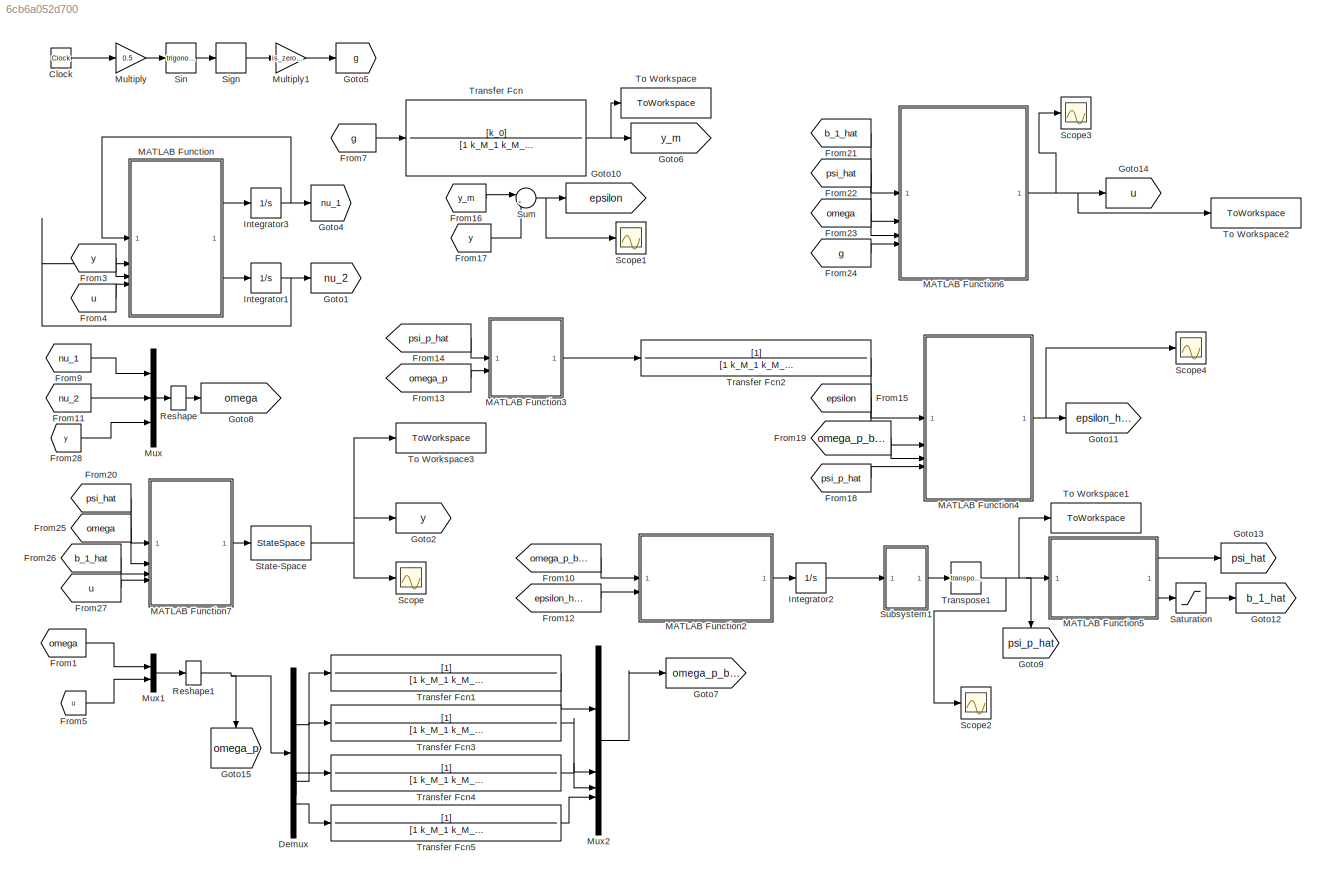
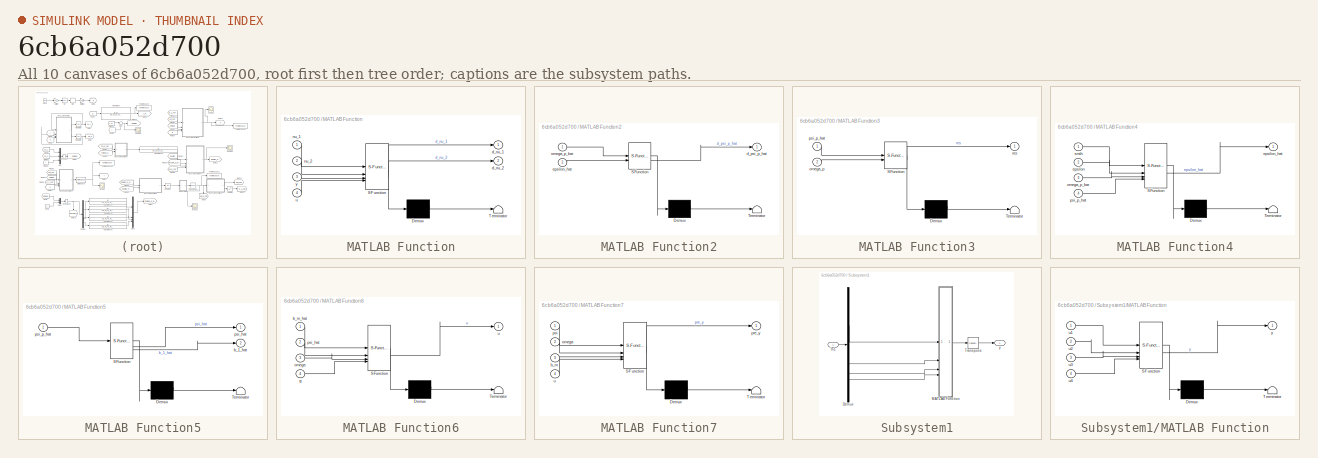
[diagram: thumbnail index - all 10 canvases of the model, root first then tree order]
MODEL slx_6cb6a052d700
KIND model
CONFIG AbsTol = auto
CONFIG EnableMultiTasking = off
CONFIG FixedStep = auto
CONFIG MaxStep = auto
CONFIG MinStep = auto
CONFIG RelTol = 1e-3
CONFIG SampleTimeConstraint = Unconstrained
CONFIG SolverName = VariableStepAuto
CONFIG StartTime = 0.0
CONFIG StopTime = 50
BLOCK [Clock] Clock
BLOCK [Demux] Demux
BLOCK [From] From1
  GotoTag = omega
BLOCK [From] From10
  GotoTag = omega_p_bar
BLOCK [From] From11
  GotoTag = nu_2
BLOCK [From] From12
  GotoTag = epsilon_hat
BLOCK [From] From13
  GotoTag = omega_p
BLOCK [From] From14
  GotoTag = psi_p_hat
BLOCK [From] From15
  GotoTag = epsilon
BLOCK [From] From16
  GotoTag = y_m
BLOCK [From] From17
  GotoTag = y
BLOCK [From] From18
  GotoTag = psi_p_hat
BLOCK [From] From19
  GotoTag = omega_p_bar
BLOCK [From] From20
  GotoTag = psi_hat
BLOCK [From] From21
  GotoTag = b_1_hat
BLOCK [From] From22
  GotoTag = psi_hat
BLOCK [From] From23
  GotoTag = omega
BLOCK [From] From24
  GotoTag = g
BLOCK [From] From25
  GotoTag = omega
BLOCK [From] From26
  GotoTag = b_1_hat
BLOCK [From] From27
  GotoTag = u
BLOCK [From] From28
  GotoTag = y
BLOCK [From] From3
  GotoTag = y
BLOCK [From] From4
  GotoTag = u
BLOCK [From] From5
  GotoTag = u
BLOCK [From] From7
  GotoTag = g
BLOCK [From] From9
  GotoTag = nu_1
BLOCK [Goto] Goto1
  GotoTag = nu_2
BLOCK [Goto] Goto10
  GotoTag = epsilon
BLOCK [Goto] Goto11
  GotoTag = epsilon_hat
BLOCK [Goto] Goto12
  GotoTag = b_1_hat
BLOCK [Goto] Goto13
  GotoTag = psi_hat
BLOCK [Goto] Goto14
  GotoTag = u
BLOCK [Goto] Goto15
  GotoTag = omega_p
  NameLocation = left
BLOCK [Goto] Goto2
  GotoTag = y
BLOCK [Goto] Goto4
  GotoTag = nu_1
BLOCK [Goto] Goto5
  GotoTag = g
BLOCK [Goto] Goto6
  GotoTag = y_m
BLOCK [Goto] Goto7
  GotoTag = omega_p_bar
BLOCK [Goto] Goto8
  GotoTag = omega
BLOCK [Goto] Goto9
  GotoTag = psi_p_hat
  NameLocation = left
BLOCK [Integrator] Integrator1
BLOCK [Integrator] Integrator2
  InitialCondition = [10; 10; 10; 10]
BLOCK [Integrator] Integrator3
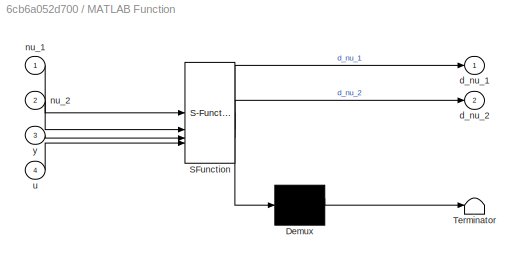
BLOCK [SubSystem] MATLAB Function
  ErrorFcn = Stateflow.Translate.translate
  PermitHierarchicalResolution = ExplicitOnly
  SFBlockType = MATLAB Function
  TreatAsAtomicUnit = on
BLOCK [Demux] MATLAB Function/ Demux 
  Outputs = 1
BLOCK [S-Function] MATLAB Function/ SFunction 
  EnableBusSupport = on
  FunctionName = sf_sfun
  Parameters = Lambda
  PortCounts = [4 3]
  SFcnIsStateOwnerBlock = off
  SFunctionDeploymentMode = off
  Tag = Stateflow S-Function 2
BLOCK [Terminator] MATLAB Function/ Terminator 
BLOCK [Outport] MATLAB Function/d_nu_1
BLOCK [Outport] MATLAB Function/d_nu_2
  Port = 2
BLOCK [Inport] MATLAB Function/nu_1
BLOCK [Inport] MATLAB Function/nu_2
  Port = 2
BLOCK [Inport] MATLAB Function/u
  Port = 4
BLOCK [Inport] MATLAB Function/y
  Port = 3
BLOCK [SubSystem] MATLAB Function2
  ErrorFcn = Stateflow.Translate.translate
  PermitHierarchicalResolution = ExplicitOnly
  SFBlockType = MATLAB Function
  TreatAsAtomicUnit = on
BLOCK [Demux] MATLAB Function2/ Demux 
  Outputs = 1
BLOCK [S-Function] MATLAB Function2/ SFunction 
  EnableBusSupport = on
  FunctionName = sf_sfun
  Parameters = gamma
  PortCounts = [2 2]
  SFcnIsStateOwnerBlock = off
  SFunctionDeploymentMode = off
  Tag = Stateflow S-Function 3
BLOCK [Terminator] MATLAB Function2/ Terminator 
BLOCK [Outport] MATLAB Function2/d_psi_p_hat
BLOCK [Inport] MATLAB Function2/epsilon_hat
  Port = 2
BLOCK [Inport] MATLAB Function2/omega_p_bar
BLOCK [SubSystem] MATLAB Function3
  ErrorFcn = Stateflow.Translate.translate
  PermitHierarchicalResolution = ExplicitOnly
  SFBlockType = MATLAB Function
  TreatAsAtomicUnit = on
BLOCK [Demux] MATLAB Function3/ Demux 
  Outputs = 1
BLOCK [S-Function] MATLAB Function3/ SFunction 
  EnableBusSupport = on
  FunctionName = sf_sfun
  PortCounts = [2 2]
  SFcnIsStateOwnerBlock = off
  SFunctionDeploymentMode = off
  Tag = Stateflow S-Function 4
BLOCK [Terminator] MATLAB Function3/ Terminator 
BLOCK [Inport] MATLAB Function3/omega_p
  Port = 2
BLOCK [Inport] MATLAB Function3/psi_p_hat
BLOCK [Outport] MATLAB Function3/res
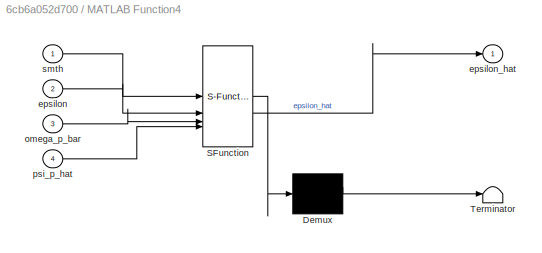
BLOCK [SubSystem] MATLAB Function4
  ErrorFcn = Stateflow.Translate.translate
  PermitHierarchicalResolution = ExplicitOnly
  SFBlockType = MATLAB Function
  TreatAsAtomicUnit = on
BLOCK [Demux] MATLAB Function4/ Demux 
  Outputs = 1
BLOCK [S-Function] MATLAB Function4/ SFunction 
  EnableBusSupport = on
  FunctionName = sf_sfun
  PortCounts = [4 2]
  SFcnIsStateOwnerBlock = off
  SFunctionDeploymentMode = off
  Tag = Stateflow S-Function 5
BLOCK [Terminator] MATLAB Function4/ Terminator 
BLOCK [Inport] MATLAB Function4/epsilon
  Port = 2
BLOCK [Outport] MATLAB Function4/epsilon_hat
BLOCK [Inport] MATLAB Function4/omega_p_bar
  Port = 3
BLOCK [Inport] MATLAB Function4/psi_p_hat
  Port = 4
BLOCK [Inport] MATLAB Function4/smth
BLOCK [SubSystem] MATLAB Function5
  ErrorFcn = Stateflow.Translate.translate
  PermitHierarchicalResolution = ExplicitOnly
  SFBlockType = MATLAB Function
  TreatAsAtomicUnit = on
BLOCK [Demux] MATLAB Function5/ Demux 
  Outputs = 1
BLOCK [S-Function] MATLAB Function5/ SFunction 
  EnableBusSupport = on
  FunctionName = sf_sfun
  PortCounts = [1 3]
  SFcnIsStateOwnerBlock = off
  SFunctionDeploymentMode = off
  Tag = Stateflow S-Function 6
BLOCK [Terminator] MATLAB Function5/ Terminator 
BLOCK [Outport] MATLAB Function5/b_1_hat
  Port = 2
BLOCK [Outport] MATLAB Function5/psi_hat
BLOCK [Inport] MATLAB Function5/psi_p_hat
BLOCK [SubSystem] MATLAB Function6
  ErrorFcn = Stateflow.Translate.translate
  PermitHierarchicalResolution = ExplicitOnly
  SFBlockType = MATLAB Function
  TreatAsAtomicUnit = on
BLOCK [Demux] MATLAB Function6/ Demux 
  Outputs = 1
BLOCK [S-Function] MATLAB Function6/ SFunction 
  EnableBusSupport = on
  FunctionName = sf_sfun
  Parameters = k_0
  PortCounts = [4 2]
  SFcnIsStateOwnerBlock = off
  SFunctionDeploymentMode = off
  Tag = Stateflow S-Function 7
BLOCK [Terminator] MATLAB Function6/ Terminator 
BLOCK [Inport] MATLAB Function6/b_m_hat
BLOCK [Inport] MATLAB Function6/g
  Port = 4
BLOCK [Inport] MATLAB Function6/omega
  Port = 3
BLOCK [Inport] MATLAB Function6/psi_hat
  Port = 2
BLOCK [Outport] MATLAB Function6/u
BLOCK [SubSystem] MATLAB Function7
  ErrorFcn = Stateflow.Translate.translate
  PermitHierarchicalResolution = ExplicitOnly
  SFBlockType = MATLAB Function
  TreatAsAtomicUnit = on
BLOCK [Demux] MATLAB Function7/ Demux 
  Outputs = 1
BLOCK [S-Function] MATLAB Function7/ SFunction 
  EnableBusSupport = on
  FunctionName = sf_sfun
  PortCounts = [4 2]
  SFcnIsStateOwnerBlock = off
  SFunctionDeploymentMode = off
  Tag = Stateflow S-Function 8
BLOCK [Terminator] MATLAB Function7/ Terminator 
BLOCK [Inport] MATLAB Function7/b_m
  Port = 3
BLOCK [Inport] MATLAB Function7/omega
  Port = 2
BLOCK [Outport] MATLAB Function7/pre_y
BLOCK [Inport] MATLAB Function7/psi
BLOCK [Inport] MATLAB Function7/u
  Port = 4
BLOCK [Gain] Multiply
  Gain = 0.5
BLOCK [Gain] Multiply1
  Gain = is_zero - 1
BLOCK [Mux] Mux
  DisplayOption = bar
  Inputs = 3
BLOCK [Mux] Mux1
  DisplayOption = bar
  Inputs = 2
BLOCK [Mux] Mux2
  DisplayOption = bar
BLOCK [Reshape] Reshape
  OutputDimensionality = Customize
  OutputDimensions = [3,1]
BLOCK [Reshape] Reshape1
  OutputDimensionality = Customize
  OutputDimensions = [4,1]
BLOCK [Saturate] Saturation
  LowerLimit = 0.1
  UpperLimit = 1e9
BLOCK [Scope] Scope
  Floating = off
  NumInputPorts = 1
  ScopeSpecificationString = Simulink.scopes.TimeScopeBlockCfg('CurrentConfiguration', extmgr.ConfigurationSet(extmgr.Configuration('Core','General UI',true),extmgr.Configuration('Core','Source UI',true),extmgr.Configuration('Sources','WiredSimulink',true),extmgr.Configuration('Visuals','Time Domain',true,'SerializedDisplays',{struct('MinYLimReal','-0.05','MaxYLimReal','0.45','YLabelReal','','MinYLimMag','0.00000','MaxYLimMag...<+1313ch>
BLOCK [Scope] Scope1
  Floating = off
  NumInputPorts = 1
  ScopeSpecificationString = Simulink.scopes.TimeScopeBlockCfg('CurrentConfiguration', extmgr.ConfigurationSet(extmgr.Configuration('Core','General UI',true),extmgr.Configuration('Core','Source UI',true),extmgr.Configuration('Sources','WiredSimulink',true,'DataLoggingVariableName','ScopeData1'),extmgr.Configuration('Visuals','Time Domain',true,'SerializedDisplays',{struct('MinYLimReal','-0.64312','MaxYLimReal','0.07146','YLab...<+1362ch>
BLOCK [Scope] Scope2
  Floating = off
  NumInputPorts = 1
  ScopeSpecificationString = Simulink.scopes.TimeScopeBlockCfg('CurrentConfiguration', extmgr.ConfigurationSet(extmgr.Configuration('Core','General UI',true),extmgr.Configuration('Core','Source UI',true),extmgr.Configuration('Sources','WiredSimulink',true,'DataLoggingVariableName','ScopeData2'),extmgr.Configuration('Visuals','Time Domain',true,'SerializedDisplays',{struct('MinYLimReal','9.87979','MaxYLimReal','10.13855','YLab...<+1418ch>
BLOCK [Scope] Scope3
  Floating = off
  NumInputPorts = 1
  ScopeSpecificationString = Simulink.scopes.TimeScopeBlockCfg('CurrentConfiguration', extmgr.ConfigurationSet(extmgr.Configuration('Core','General UI',true),extmgr.Configuration('Core','Source UI',true),extmgr.Configuration('Sources','WiredSimulink',true,'DataLoggingVariableName','ScopeData3'),extmgr.Configuration('Visuals','Time Domain',true,'SerializedDisplays',{struct('MinYLimReal','-0.77056','MaxYLimReal','0.29407','YLab...<+1375ch>
BLOCK [Scope] Scope4
  Floating = off
  NumInputPorts = 1
  ScopeSpecificationString = Simulink.scopes.TimeScopeBlockCfg('CurrentConfiguration', extmgr.ConfigurationSet(extmgr.Configuration('Core','General UI',true),extmgr.Configuration('Core','Source UI',true),extmgr.Configuration('Sources','WiredSimulink',true,'DataLoggingVariableName','ScopeData4'),extmgr.Configuration('Visuals','Time Domain',true,'SerializedDisplays',{struct('MinYLimReal','-0.64312','MaxYLimReal','0.07146','YLab...<+1375ch>
BLOCK [Signum] Sign
BLOCK [Trigonometry] Sin
BLOCK [StateSpace] State-Space
  A = ss(tf([1], [1, k_M_1 k_M_0])).A
  B = ss(tf([1], [1, k_M_1 k_M_0])).B
  C = ss(tf([1], [1, k_M_1 k_M_0])).C
  D = ss(tf([1], [1, k_M_1 k_M_0])).D
  InitialCondition = 1
BLOCK [SubSystem] Subsystem1
BLOCK [Demux] Subsystem1/Demux
BLOCK [Inport] Subsystem1/In1
BLOCK [SubSystem] Subsystem1/MATLAB Function
  ErrorFcn = Stateflow.Translate.translate
  PermitHierarchicalResolution = ExplicitOnly
  SFBlockType = MATLAB Function
  TreatAsAtomicUnit = on
BLOCK [Demux] Subsystem1/MATLAB Function/ Demux 
  Outputs = 1
BLOCK [S-Function] Subsystem1/MATLAB Function/ SFunction 
  EnableBusSupport = on
  FunctionName = sf_sfun
  PortCounts = [4 2]
  SFcnIsStateOwnerBlock = off
  SFunctionDeploymentMode = off
  Tag = Stateflow S-Function 10
BLOCK [Terminator] Subsystem1/MATLAB Function/ Terminator 
BLOCK [Inport] Subsystem1/MATLAB Function/u1
BLOCK [Inport] Subsystem1/MATLAB Function/u2
  Port = 2
BLOCK [Inport] Subsystem1/MATLAB Function/u3
  Port = 3
BLOCK [Inport] Subsystem1/MATLAB Function/u4
  Port = 4
BLOCK [Outport] Subsystem1/MATLAB Function/y
BLOCK [Math] Subsystem1/Transpose
  Operator = transpose
BLOCK [Outport] Subsystem1/y
BLOCK [Sum] Sum
  Inputs = |+-
BLOCK [ToWorkspace] To Workspace
  FixptAsFi = on
  MaxDataPoints = inf
  SampleTime = -1
  SaveFormat = Timeseries
  VariableName = y_m
BLOCK [ToWorkspace] To Workspace1
  FixptAsFi = on
  MaxDataPoints = inf
  SampleTime = -1
  SaveFormat = Timeseries
  VariableName = psi_p_hat
BLOCK [ToWorkspace] To Workspace2
  FixptAsFi = on
  MaxDataPoints = inf
  SampleTime = -1
  SaveFormat = Timeseries
  VariableName = u
BLOCK [ToWorkspace] To Workspace3
  FixptAsFi = on
  MaxDataPoints = inf
  SampleTime = -1
  SaveFormat = Timeseries
  VariableName = y
BLOCK [TransferFcn] Transfer Fcn
  Denominator = [1 k_M_1 k_M_0]
  Numerator = [k_0]
BLOCK [TransferFcn] Transfer Fcn1
  Denominator = [1 k_M_1 k_M_0]
BLOCK [TransferFcn] Transfer Fcn2
  Denominator = [1 k_M_1 k_M_0]
BLOCK [TransferFcn] Transfer Fcn3
  Denominator = [1 k_M_1 k_M_0]
BLOCK [TransferFcn] Transfer Fcn4
  Denominator = [1 k_M_1 k_M_0]
BLOCK [TransferFcn] Transfer Fcn5
  Denominator = [1 k_M_1 k_M_0]
BLOCK [Math] Transpose1
  Operator = transpose
LINE Clock:1 -> Multiply:1
LINE Demux:1 -> Transfer Fcn1:1
LINE Demux:2 -> Transfer Fcn3:1
LINE Demux:3 -> Transfer Fcn4:1
LINE Demux:4 -> Transfer Fcn5:1
LINE From10:1 -> MATLAB Function2:1
LINE From11:1 -> Mux:2
LINE From12:1 -> MATLAB Function2:2
LINE From13:1 -> MATLAB Function3:2
LINE From14:1 -> MATLAB Function3:1
LINE From15:1 -> MATLAB Function4:2
LINE From16:1 -> Sum:1
LINE From17:1 -> Sum:2
LINE From18:1 -> MATLAB Function4:4
LINE From19:1 -> MATLAB Function4:3
LINE From1:1 -> Mux1:1
LINE From20:1 -> MATLAB Function7:1
LINE From21:1 -> MATLAB Function6:1
LINE From22:1 -> MATLAB Function6:2
LINE From23:1 -> MATLAB Function6:3
LINE From24:1 -> MATLAB Function6:4
LINE From25:1 -> MATLAB Function7:2
LINE From26:1 -> MATLAB Function7:3
LINE From27:1 -> MATLAB Function7:4
LINE From28:1 -> Mux:3
LINE From3:1 -> MATLAB Function:3
LINE From4:1 -> MATLAB Function:4
LINE From5:1 -> Mux1:2
LINE From7:1 -> Transfer Fcn:1
LINE From9:1 -> Mux:1
NET Integrator1:1 -> Goto1:1, MATLAB Function:2
LINE Integrator2:1 -> Subsystem1:1
NET Integrator3:1 -> Goto4:1, MATLAB Function:1
LINE MATLAB Function2:1 -> Integrator2:1
LINE MATLAB Function3:1 -> Transfer Fcn2:1
NET MATLAB Function4:1 -> Goto11:1, Scope4:1
LINE MATLAB Function5:1 -> Goto13:1
LINE MATLAB Function5:2 -> Saturation:1
NET MATLAB Function6:1 -> Goto14:1, Scope3:1, To Workspace2:1
LINE MATLAB Function7:1 -> State-Space:1
LINE MATLAB Function:1 -> Integrator3:1
LINE MATLAB Function:2 -> Integrator1:1
LINE Multiply1:1 -> Goto5:1
LINE Multiply:1 -> Sin:1
LINE Mux1:1 -> Reshape1:1
LINE Mux2:1 -> Goto7:1
LINE Mux:1 -> Reshape:1
NET Reshape1:1 -> Demux:1, Goto15:1
LINE Reshape:1 -> Goto8:1
LINE Saturation:1 -> Goto12:1
LINE Sign:1 -> Multiply1:1
LINE Sin:1 -> Sign:1
NET State-Space:1 -> Goto2:1, Scope:1, To Workspace3:1
LINE Subsystem1/Demux:1 -> Subsystem1/MATLAB Function:1
LINE Subsystem1/Demux:2 -> Subsystem1/MATLAB Function:2
LINE Subsystem1/Demux:3 -> Subsystem1/MATLAB Function:3
LINE Subsystem1/Demux:4 -> Subsystem1/MATLAB Function:4
LINE Subsystem1/In1:1 -> Subsystem1/Demux:1
LINE Subsystem1/MATLAB Function:1 -> Subsystem1/Transpose:1
LINE Subsystem1/Transpose:1 -> Subsystem1/y:1
LINE Subsystem1:1 -> Transpose1:1
NET Sum:1 -> Goto10:1, Scope1:1
LINE Transfer Fcn1:1 -> Mux2:1
LINE Transfer Fcn2:1 -> MATLAB Function4:1
LINE Transfer Fcn3:1 -> Mux2:2
LINE Transfer Fcn4:1 -> Mux2:3
LINE Transfer Fcn5:1 -> Mux2:4
NET Transfer Fcn:1 -> Goto6:1, To Workspace:1
NET Transpose1:1 -> Goto9:1, MATLAB Function5:1, Scope2:1, To Workspace1:1
note: NET lines group one-source signal fan-out (src -> all destinations, sorted); 1:1 wires keep LINE
CHART MATLAB Function states=1 transitions=1
  STATE_LABEL 'eML_blk_kernel()'
  STATE_LABEL 'SCRIPT:\nfunction [d_nu_1, d_nu_2]= fcn(nu_1, nu_2, y, u,Lambda)\n\nd_nu_1 = Lambda * nu_1 + u(1);\nd_nu_2 = Lambda * nu_2 + y;\n% omega = transpose([nu_1 nu_2 y]);\n% omega_p = -transpose([transpose(omega) u]);'
CHART MATLAB Function2 states=1 transitions=1
  STATE_LABEL 'eML_blk_kernel()'
  STATE_LABEL 'SCRIPT:\nfunction d_psi_p_hat = fcn(omega_p_bar, epsilon_hat, gamma)\n\nd_psi_p_hat = gamma * omega_p_bar / (1 + transpose(omega_p_bar) * omega_p_bar) * epsilon_hat;\n% d_psi_p_hat = transpose(d_psi_p_hat);\n'
CHART MATLAB Function3 states=1 transitions=1
  STATE_LABEL 'eML_blk_kernel()'
  STATE_LABEL 'SCRIPT:\nfunction res = fcn(psi_p_hat, omega_p)\n\nres = transpose(psi_p_hat) * omega_p;\n'
CHART MATLAB Function4 states=1 transitions=1
  STATE_LABEL 'eML_blk_kernel()'
  STATE_LABEL 'SCRIPT:\nfunction epsilon_hat = fcn(smth, epsilon, omega_p_bar, psi_p_hat)\n\nepsilon_hat = epsilon + smth;\nepsilon_hat = epsilon + smth - transpose(psi_p_hat) * omega_p_bar;'
CHART MATLAB Function5 states=1 transitions=1
  STATE_LABEL 'eML_blk_kernel()'
  STATE_LABEL 'SCRIPT:\nfunction [psi_hat, b_1_hat]= fcn(psi_p_hat) \n\npsi_hat = psi_p_hat(1:3);\nb_1_hat = psi_p_hat(4);'
CHART MATLAB Function6 states=1 transitions=1
  STATE_LABEL 'eML_blk_kernel()'
  STATE_LABEL 'SCRIPT:\nfunction u = fcn(b_m_hat, psi_hat, omega, g, k_0)\n\nu = (-transpose(psi_hat) * omega + k_0 * g) / b_m_hat;\n'
CHART MATLAB Function7 states=1 transitions=1
  STATE_LABEL 'eML_blk_kernel()'
  STATE_LABEL 'SCRIPT:\nfunction pre_y = fcn(psi, omega, b_m, u)\n\npre_y = transpose(psi) * omega + b_m * u;\n'
CHART Subsystem1/MATLAB Function states=1 transitions=1
  STATE_LABEL 'eML_blk_kernel()'
  STATE_LABEL 'SCRIPT:\nfunction y = fcn(u1, u2, u3, u4)\n\ny = [u1; u2; u3; u4];\n'
CHART  states=0 transitions=0
CHART  states=0 transitions=0
CHART  states=0 transitions=0
CHART  states=0 transitions=0
CHART  states=0 transitions=0
CHART  states=0 transitions=0
CHART  states=0 transitions=0
CHART  states=0 transitions=0
